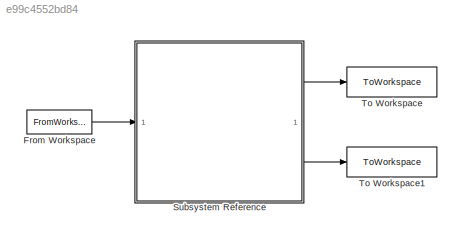
MODEL slx_e99c4552bd84
KIND model
CONFIG AbsTol = auto
CONFIG EnableMultiTasking = on
CONFIG FixedStep = auto
CONFIG MaxStep = auto
CONFIG MinStep = auto
CONFIG RelTol = 1e-3
CONFIG SampleTimeConstraint = Unconstrained
CONFIG SolverName = FixedStepAuto
CONFIG StartTime = 0.0
CONFIG StopTime = inf
BLOCK [FromWorkspace] From Workspace
  VariableName = voltage
BLOCK [SubSystem] Subsystem Reference
  ReferencedSubsystem = pololu_37D_hardware_interface
  Ts = 0.005
  pwmFreq = 2000
BLOCK [ToWorkspace] To Workspace
  FixptAsFi = on
  MaxDataPoints = inf
  SampleTime = -1
  SaveFormat = Timeseries
  VariableName = position
BLOCK [ToWorkspace] To Workspace1
  FixptAsFi = on
  MaxDataPoints = inf
  SampleTime = -1
  SaveFormat = Timeseries
  VariableName = speed
LINE From Workspace:1 -> Subsystem Reference:1
LINE Subsystem Reference:1 -> To Workspace:1
LINE Subsystem Reference:2 -> To Workspace1:1
